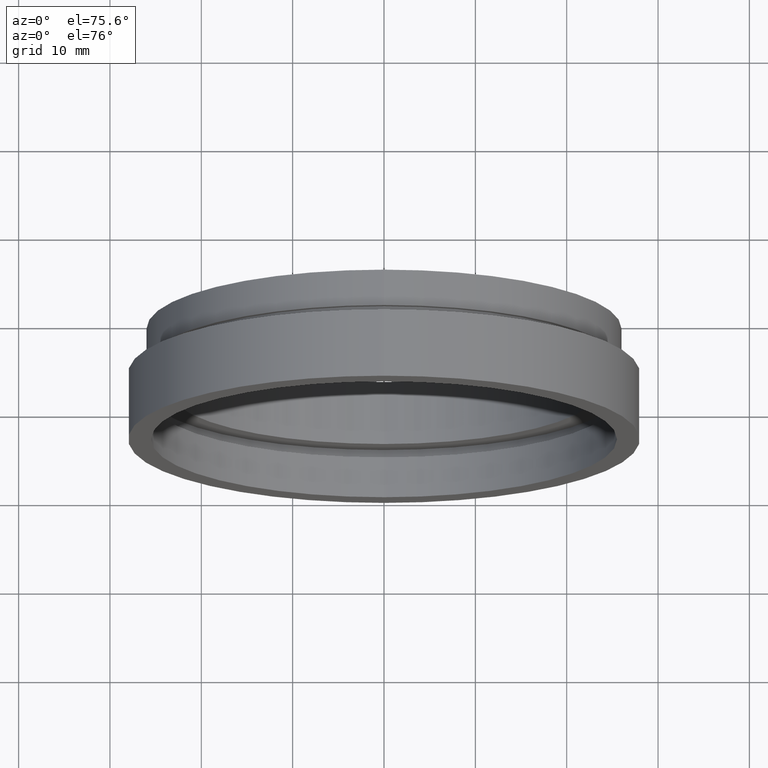
[diagram: clean part render]
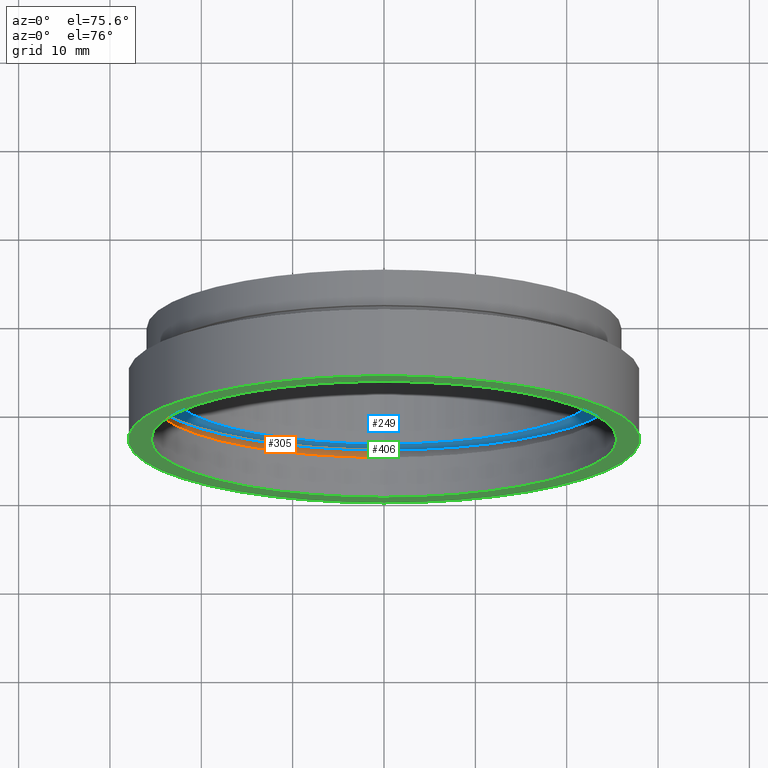
[diagram: same view with three faces highlighted in distinct colors, each labeled with its STEP entity id]
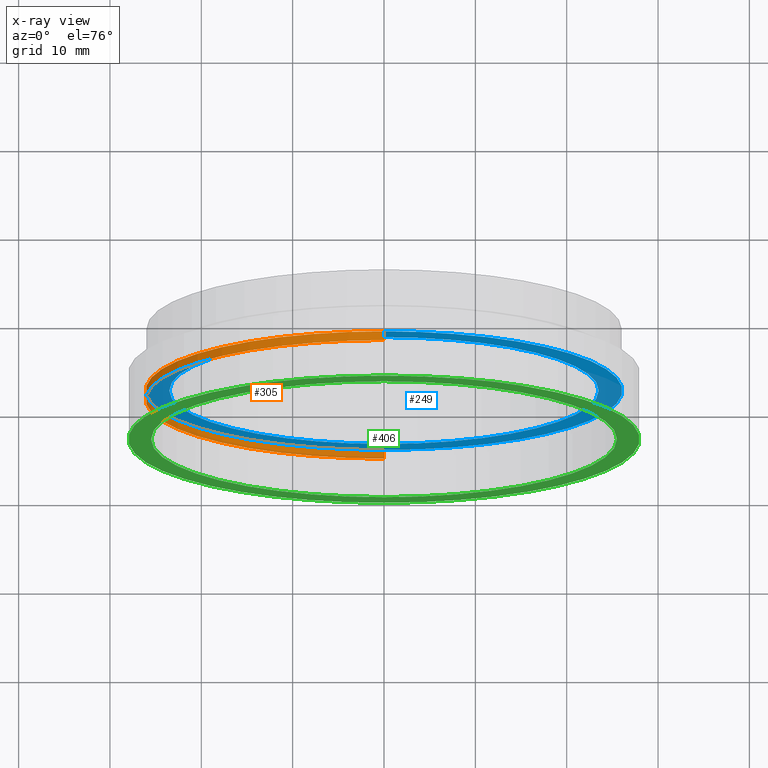
[diagram: x-ray of the same camera — body ghosted, the three highlighted faces saturated]
A machine part, auxiliary view with three faces highlighted in distinct colors.
The next image is the same camera in x-ray (body ghosted, the three faces saturated) — at least one of them is partly hidden behind the body in this view.
Their STEP definitions:

[orange] entity #305 — the highlighted cylindrical surface (partial cylindrical patch) has radius 26.1 mm, axis along (-0, 1, -0).
#3 = DIRECTION ( 'NONE',  ( 0.0000000000000000000, 0.0000000000000000000, 1.000000000000000000 ) ) ;
#33 = VERTEX_POINT ( 'NONE', #174 ) ;
#34 = DIRECTION ( 'NONE',  ( -0.0000000000000000000, 1.000000000000000000, -0.0000000000000000000 ) ) ;
#76 = EDGE_CURVE ( 'NONE', #607, #144, #617, .T. ) ;
#83 = CARTESIAN_POINT ( 'NONE',  ( 0.0000000000000000000, 161.3761669434274500, 26.10000000000002300 ) ) ;
#84 = CARTESIAN_POINT ( 'NONE',  ( 0.0000000000000000000, 4.499999999999976000, 26.10000000000002300 ) ) ;
#108 = ORIENTED_EDGE ( 'NONE', *, *, #114, .F. ) ;
#114 = EDGE_CURVE ( 'NONE', #557, #33, #338, .T. ) ;
#144 = VERTEX_POINT ( 'NONE', #524 ) ;
#153 = CARTESIAN_POINT ( 'NONE',  ( 0.0000000000000000000, 161.3761669434274500, 0.0000000000000000000 ) ) ;
#174 = CARTESIAN_POINT ( 'NONE',  ( 0.0000000000000000000, 5.499999999999976900, 26.10000000000002300 ) ) ;
#196 = DIRECTION ( 'NONE',  ( -0.0000000000000000000, 1.000000000000000000, -0.0000000000000000000 ) ) ;
#226 = DIRECTION ( 'NONE',  ( -0.0000000000000000000, 1.000000000000000000, -0.0000000000000000000 ) ) ;
#245 = DIRECTION ( 'NONE',  ( 0.0000000000000000000, 0.0000000000000000000, 1.000000000000000000 ) ) ;
#250 = DIRECTION ( 'NONE',  ( -0.0000000000000000000, 1.000000000000000000, -0.0000000000000000000 ) ) ;
#258 = CYLINDRICAL_SURFACE ( 'NONE', #445, 26.10000000000002300 ) ;
#264 = ORIENTED_EDGE ( 'NONE', *, *, #76, .T. ) ;
#291 = CIRCLE ( 'NONE', #347, 26.10000000000002300 ) ;
#295 = CARTESIAN_POINT ( 'NONE',  ( 0.0000000000000000000, 5.499999999999976900, 0.0000000000000000000 ) ) ;
#305 = ADVANCED_FACE ( 'NONE', ( #603 ), #258, .F. ) ;
#310 = EDGE_CURVE ( 'NONE', #144, #33, #434, .T. ) ;
#325 = CARTESIAN_POINT ( 'NONE',  ( 3.196328145774594700E-015, 161.3761669434274500, -26.10000000000002300 ) ) ;
#333 = VECTOR ( 'NONE', #34, 1000.000000000000000 ) ;
#338 = LINE ( 'NONE', #83, #370 ) ;
#347 = AXIS2_PLACEMENT_3D ( 'NONE', #452, #250, #403 ) ;
#365 = EDGE_LOOP ( 'NONE', ( #564, #264, #387, #108 ) ) ;
#370 = VECTOR ( 'NONE', #226, 1000.000000000000000 ) ;
#375 = CARTESIAN_POINT ( 'NONE',  ( 3.196328145774594700E-015, 4.499999999999976000, -26.10000000000002300 ) ) ;
#384 = DIRECTION ( 'NONE',  ( -0.0000000000000000000, 1.000000000000000000, -0.0000000000000000000 ) ) ;
#387 = ORIENTED_EDGE ( 'NONE', *, *, #310, .T. ) ;
#403 = DIRECTION ( 'NONE',  ( 0.0000000000000000000, 0.0000000000000000000, 1.000000000000000000 ) ) ;
#434 = CIRCLE ( 'NONE', #476, 26.10000000000002300 ) ;
#445 = AXIS2_PLACEMENT_3D ( 'NONE', #153, #196, #245 ) ;
#452 = CARTESIAN_POINT ( 'NONE',  ( 0.0000000000000000000, 4.499999999999976000, 0.0000000000000000000 ) ) ;
#467 = EDGE_CURVE ( 'NONE', #607, #557, #291, .T. ) ;
#476 = AXIS2_PLACEMENT_3D ( 'NONE', #295, #384, #3 ) ;
#524 = CARTESIAN_POINT ( 'NONE',  ( 3.196328145774594700E-015, 5.499999999999976900, -26.10000000000002300 ) ) ;
#557 = VERTEX_POINT ( 'NONE', #84 ) ;
#564 = ORIENTED_EDGE ( 'NONE', *, *, #467, .F. ) ;
#603 = FACE_OUTER_BOUND ( 'NONE', #365, .T. ) ;
#607 = VERTEX_POINT ( 'NONE', #375 ) ;
#617 = LINE ( 'NONE', #325, #333 ) ;

[blue] entity #249 — the highlighted planar face has unit normal (-0, 1, 0).
#3 = DIRECTION ( 'NONE',  ( 0.0000000000000000000, 0.0000000000000000000, 1.000000000000000000 ) ) ;
#33 = VERTEX_POINT ( 'NONE', #174 ) ;
#40 = EDGE_LOOP ( 'NONE', ( #444, #261 ) ) ;
#44 = PLANE ( 'NONE',  #410 ) ;
#90 = CARTESIAN_POINT ( 'NONE',  ( 0.0000000000000000000, 5.499999999999976900, 0.0000000000000000000 ) ) ;
#98 = DIRECTION ( 'NONE',  ( 0.0000000000000000000, 0.0000000000000000000, 1.000000000000000000 ) ) ;
#104 = AXIS2_PLACEMENT_3D ( 'NONE', #90, #489, #439 ) ;
#120 = EDGE_LOOP ( 'NONE', ( #497, #405 ) ) ;
#136 = CARTESIAN_POINT ( 'NONE',  ( 2.877919977996282700E-015, 5.499999999999976900, -23.50000000000002100 ) ) ;
#144 = VERTEX_POINT ( 'NONE', #524 ) ;
#148 = AXIS2_PLACEMENT_3D ( 'NONE', #335, #381, #289 ) ;
#150 = EDGE_CURVE ( 'NONE', #164, #597, #292, .T. ) ;
#164 = VERTEX_POINT ( 'NONE', #136 ) ;
#174 = CARTESIAN_POINT ( 'NONE',  ( 0.0000000000000000000, 5.499999999999976900, 26.10000000000002300 ) ) ;
#249 = ADVANCED_FACE ( 'NONE', ( #368, #567 ), #44, .F. ) ;
#261 = ORIENTED_EDGE ( 'NONE', *, *, #150, .T. ) ;
#273 = DIRECTION ( 'NONE',  ( 0.0000000000000000000, 0.0000000000000000000, 1.000000000000000000 ) ) ;
#288 = AXIS2_PLACEMENT_3D ( 'NONE', #574, #433, #273 ) ;
#289 = DIRECTION ( 'NONE',  ( 0.0000000000000000000, 0.0000000000000000000, 1.000000000000000000 ) ) ;
#292 = CIRCLE ( 'NONE', #288, 23.50000000000002100 ) ;
#295 = CARTESIAN_POINT ( 'NONE',  ( 0.0000000000000000000, 5.499999999999976900, 0.0000000000000000000 ) ) ;
#301 = CIRCLE ( 'NONE', #148, 26.10000000000002300 ) ;
#310 = EDGE_CURVE ( 'NONE', #144, #33, #434, .T. ) ;
#330 = EDGE_CURVE ( 'NONE', #33, #144, #301, .T. ) ;
#335 = CARTESIAN_POINT ( 'NONE',  ( 0.0000000000000000000, 5.499999999999976900, 0.0000000000000000000 ) ) ;
#368 = FACE_OUTER_BOUND ( 'NONE', #120, .T. ) ;
#381 = DIRECTION ( 'NONE',  ( -0.0000000000000000000, 1.000000000000000000, -0.0000000000000000000 ) ) ;
#384 = DIRECTION ( 'NONE',  ( -0.0000000000000000000, 1.000000000000000000, -0.0000000000000000000 ) ) ;
#405 = ORIENTED_EDGE ( 'NONE', *, *, #310, .F. ) ;
#410 = AXIS2_PLACEMENT_3D ( 'NONE', #443, #535, #98 ) ;
#428 = CIRCLE ( 'NONE', #104, 23.50000000000002100 ) ;
#433 = DIRECTION ( 'NONE',  ( -0.0000000000000000000, 1.000000000000000000, -0.0000000000000000000 ) ) ;
#434 = CIRCLE ( 'NONE', #476, 26.10000000000002300 ) ;
#439 = DIRECTION ( 'NONE',  ( 0.0000000000000000000, 0.0000000000000000000, 1.000000000000000000 ) ) ;
#443 = CARTESIAN_POINT ( 'NONE',  ( 26.10000000000002300, 5.499999999999985800, 0.0000000000000000000 ) ) ;
#444 = ORIENTED_EDGE ( 'NONE', *, *, #566, .T. ) ;
#476 = AXIS2_PLACEMENT_3D ( 'NONE', #295, #384, #3 ) ;
#489 = DIRECTION ( 'NONE',  ( -0.0000000000000000000, 1.000000000000000000, -0.0000000000000000000 ) ) ;
#497 = ORIENTED_EDGE ( 'NONE', *, *, #330, .F. ) ;
#524 = CARTESIAN_POINT ( 'NONE',  ( 3.196328145774594700E-015, 5.499999999999976900, -26.10000000000002300 ) ) ;
#534 = CARTESIAN_POINT ( 'NONE',  ( 0.0000000000000000000, 5.499999999999976900, 23.50000000000002100 ) ) ;
#535 = DIRECTION ( 'NONE',  ( -0.0000000000000000000, 1.000000000000000000, 0.0000000000000000000 ) ) ;
#566 = EDGE_CURVE ( 'NONE', #597, #164, #428, .T. ) ;
#567 = FACE_BOUND ( 'NONE', #40, .T. ) ;
#574 = CARTESIAN_POINT ( 'NONE',  ( 0.0000000000000000000, 5.499999999999976900, 0.0000000000000000000 ) ) ;
#597 = VERTEX_POINT ( 'NONE', #534 ) ;

[green] entity #406 — the highlighted planar face has unit normal (-0, 1, 0).
#19 = EDGE_CURVE ( 'NONE', #575, #363, #423, .T. ) ;
#20 = ORIENTED_EDGE ( 'NONE', *, *, #271, .T. ) ;
#25 = ORIENTED_EDGE ( 'NONE', *, *, #19, .F. ) ;
#54 = EDGE_CURVE ( 'NONE', #363, #575, #558, .T. ) ;
#68 = CIRCLE ( 'NONE', #514, 25.50000000000001800 ) ;
#77 = ORIENTED_EDGE ( 'NONE', *, *, #430, .T. ) ;
#91 = CARTESIAN_POINT ( 'NONE',  ( 3.429011037612590900E-015, -2.775557561562891400E-014, -28.00000000000001800 ) ) ;
#103 = CARTESIAN_POINT ( 'NONE',  ( 28.00000000000001800, -1.408179048343280700E-014, 0.0000000000000000000 ) ) ;
#122 = DIRECTION ( 'NONE',  ( -0.0000000000000000000, 1.000000000000000000, -0.0000000000000000000 ) ) ;
#125 = CARTESIAN_POINT ( 'NONE',  ( 0.0000000000000000000, -2.775557561562891400E-014, 0.0000000000000000000 ) ) ;
#160 = AXIS2_PLACEMENT_3D ( 'NONE', #515, #366, #265 ) ;
#168 = EDGE_LOOP ( 'NONE', ( #20, #77 ) ) ;
#187 = CARTESIAN_POINT ( 'NONE',  ( 3.122849337825753000E-015, -2.775557561562891400E-014, -25.50000000000001800 ) ) ;
#201 = CARTESIAN_POINT ( 'NONE',  ( 0.0000000000000000000, -2.775557561562891400E-014, 25.50000000000001800 ) ) ;
#204 = DIRECTION ( 'NONE',  ( -0.0000000000000000000, 1.000000000000000000, 0.0000000000000000000 ) ) ;
#206 = DIRECTION ( 'NONE',  ( 0.0000000000000000000, 0.0000000000000000000, 1.000000000000000000 ) ) ;
#212 = CARTESIAN_POINT ( 'NONE',  ( 0.0000000000000000000, -2.775557561562891400E-014, 0.0000000000000000000 ) ) ;
#217 = AXIS2_PLACEMENT_3D ( 'NONE', #103, #204, #206 ) ;
#227 = FACE_BOUND ( 'NONE', #168, .T. ) ;
#256 = EDGE_LOOP ( 'NONE', ( #25, #511 ) ) ;
#265 = DIRECTION ( 'NONE',  ( 0.0000000000000000000, 0.0000000000000000000, 1.000000000000000000 ) ) ;
#271 = EDGE_CURVE ( 'NONE', #350, #622, #326, .T. ) ;
#313 = FACE_OUTER_BOUND ( 'NONE', #256, .T. ) ;
#317 = AXIS2_PLACEMENT_3D ( 'NONE', #125, #122, #604 ) ;
#326 = CIRCLE ( 'NONE', #606, 25.50000000000001800 ) ;
#341 = DIRECTION ( 'NONE',  ( -0.0000000000000000000, 1.000000000000000000, -0.0000000000000000000 ) ) ;
#350 = VERTEX_POINT ( 'NONE', #201 ) ;
#363 = VERTEX_POINT ( 'NONE', #91 ) ;
#366 = DIRECTION ( 'NONE',  ( -0.0000000000000000000, 1.000000000000000000, -0.0000000000000000000 ) ) ;
#406 = ADVANCED_FACE ( 'NONE', ( #313, #227 ), #503, .F. ) ;
#423 = CIRCLE ( 'NONE', #317, 28.00000000000001800 ) ;
#430 = EDGE_CURVE ( 'NONE', #622, #350, #68, .T. ) ;
#462 = DIRECTION ( 'NONE',  ( 0.0000000000000000000, 0.0000000000000000000, 1.000000000000000000 ) ) ;
#503 = PLANE ( 'NONE',  #217 ) ;
#511 = ORIENTED_EDGE ( 'NONE', *, *, #54, .F. ) ;
#514 = AXIS2_PLACEMENT_3D ( 'NONE', #212, #547, #462 ) ;
#515 = CARTESIAN_POINT ( 'NONE',  ( 0.0000000000000000000, -2.775557561562891400E-014, 0.0000000000000000000 ) ) ;
#529 = CARTESIAN_POINT ( 'NONE',  ( 0.0000000000000000000, -2.775557561562891400E-014, 28.00000000000001800 ) ) ;
#547 = DIRECTION ( 'NONE',  ( -0.0000000000000000000, 1.000000000000000000, -0.0000000000000000000 ) ) ;
#558 = CIRCLE ( 'NONE', #160, 28.00000000000001800 ) ;
#575 = VERTEX_POINT ( 'NONE', #529 ) ;
#589 = DIRECTION ( 'NONE',  ( 0.0000000000000000000, 0.0000000000000000000, 1.000000000000000000 ) ) ;
#604 = DIRECTION ( 'NONE',  ( 0.0000000000000000000, 0.0000000000000000000, 1.000000000000000000 ) ) ;
#606 = AXIS2_PLACEMENT_3D ( 'NONE', #621, #341, #589 ) ;
#621 = CARTESIAN_POINT ( 'NONE',  ( 0.0000000000000000000, -2.775557561562891400E-014, 0.0000000000000000000 ) ) ;
#622 = VERTEX_POINT ( 'NONE', #187 ) ;